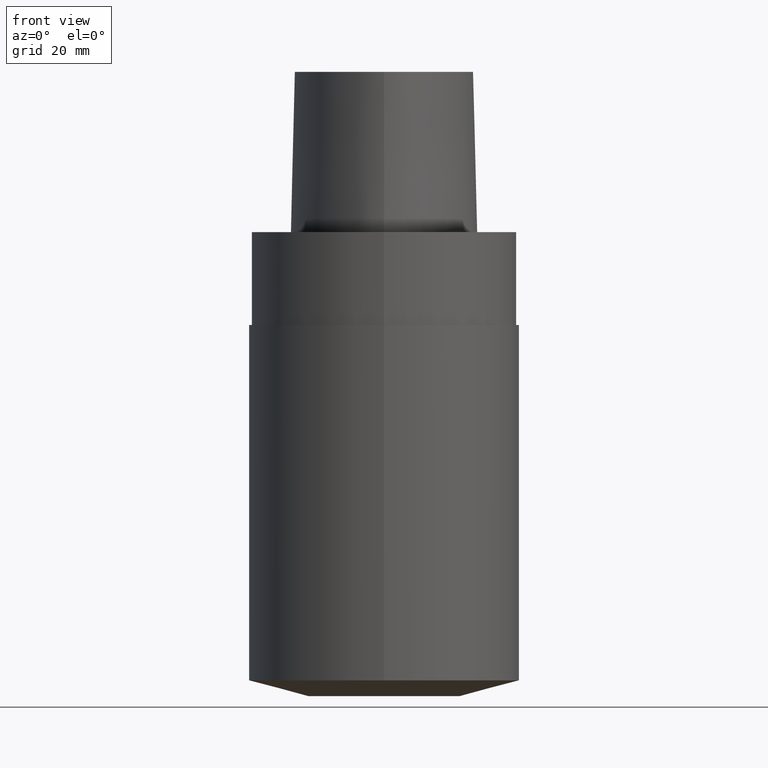
[diagram: clean part render]
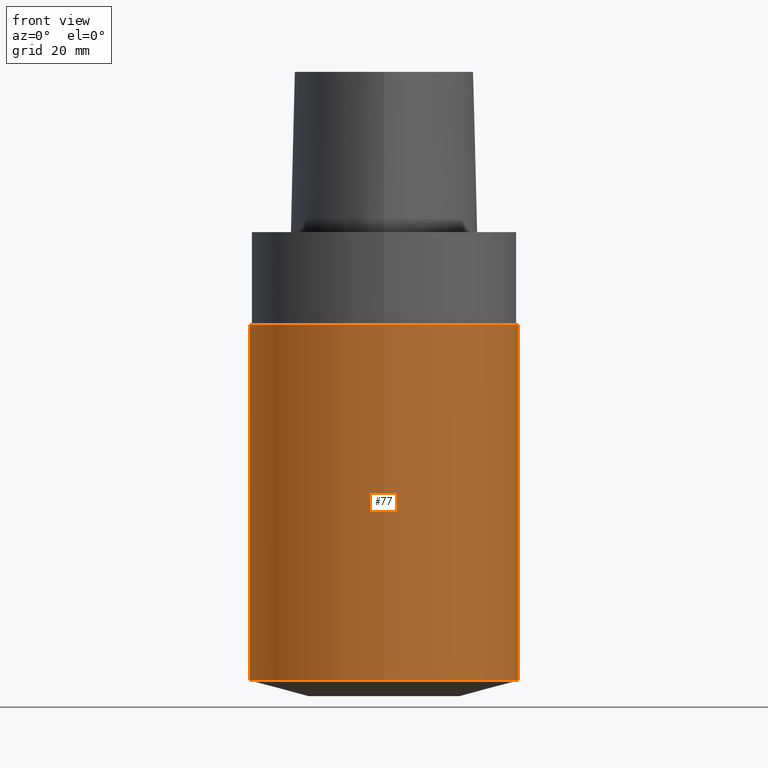
[diagram: same view with one face highlighted and labeled with its STEP entity id]
A machine part, front view. The second image highlights one B-rep face of the part: STEP entity #77.
In plain terms, the highlighted cylindrical surface (bore or boss wall) has radius 32 mm, axis along (-0, -0, 1).
Its self-contained STEP definition (entity closure, byte-faithful):
#77=ADVANCED_FACE('',(#92,#93),#94,.T.);
#92=FACE_BOUND('',#117,.T.);
#93=FACE_BOUND('',#118,.T.);
#94=CYLINDRICAL_SURFACE('',#119,32.0);
#117=EDGE_LOOP('',(#286));
#118=EDGE_LOOP('',(#287));
#119=AXIS2_PLACEMENT_3D('',#288,#289,#290);
#286=ORIENTED_EDGE('',*,*,#330,.T.);
#287=ORIENTED_EDGE('',*,*,#328,.F.);
#288=CARTESIAN_POINT('',(3.926484E-015,7.852969E-015,-64.1243556514737));
#289=DIRECTION('',(-0.0,-0.0,1.0));
#290=DIRECTION('',(0.0,1.0,0.0));
#328=EDGE_CURVE('',#345,#345,#346,.T.);
#330=EDGE_CURVE('',#349,#349,#350,.T.);
#345=VERTEX_POINT('',#428);
#346=CIRCLE('',#429,32.0);
#349=VERTEX_POINT('',#432);
#350=CIRCLE('',#433,32.0);
#428=CARTESIAN_POINT('',(7.744013E-018,-32.0,-106.248711302947));
#429=AXIS2_PLACEMENT_3D('',#482,#483,#484);
#432=CARTESIAN_POINT('',(7.744013E-018,-32.0,-22.0));
#433=AXIS2_PLACEMENT_3D('',#488,#489,#490);
#482=CARTESIAN_POINT('',(6.505857E-015,1.301171E-014,-106.248711302947));
#483=DIRECTION('',(0.0,0.0,-1.0));
#484=DIRECTION('',(0.0,1.0,0.0));
#488=CARTESIAN_POINT('',(1.347111E-015,2.694223E-015,-22.0));
#489=DIRECTION('',(0.0,0.0,-1.0));
#490=DIRECTION('',(0.0,1.0,0.0));